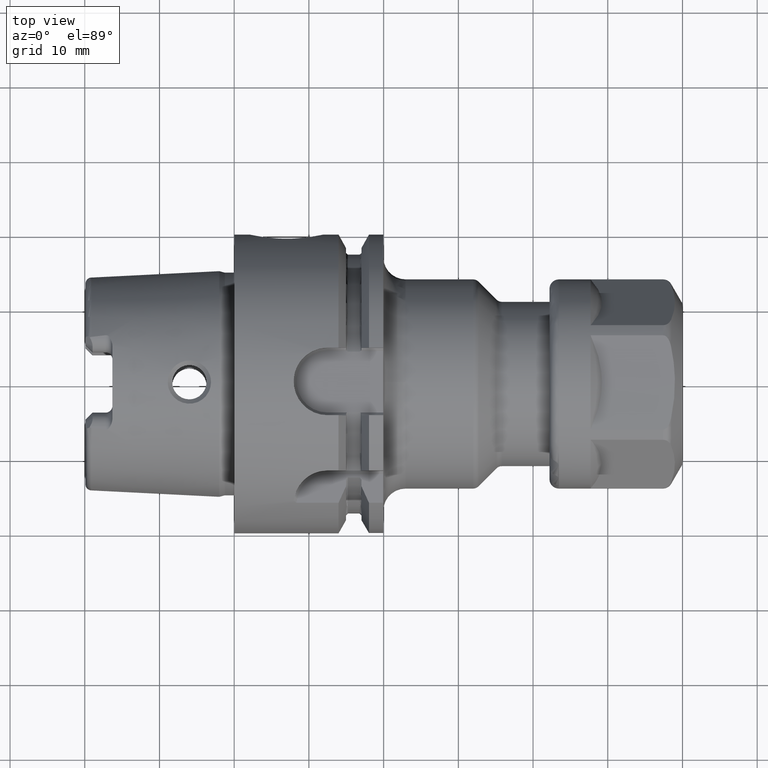
[diagram: clean part render]
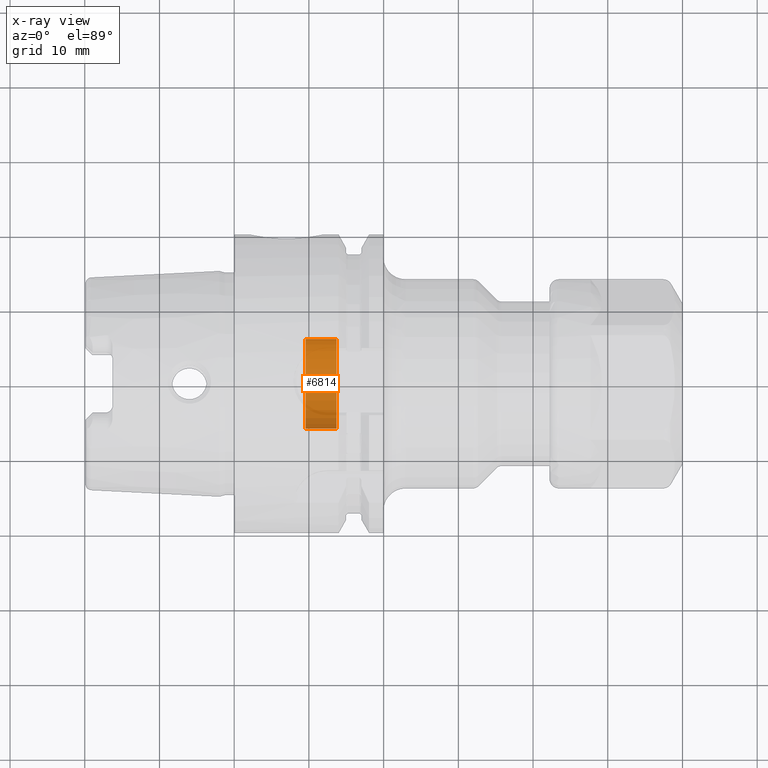
[diagram: x-ray — body ghosted, one internal face saturated and labeled with its STEP entity id]
A machine part, top view, then the same camera in x-ray: the body is ghosted and one INTERNAL B-rep face — a face not visible from any outside direction — is saturated and labeled: STEP entity #6814.
In plain terms, the highlighted cylindrical surface (partial cylindrical patch) has radius 6 mm, axis along (-1, 0, 0).
Its self-contained STEP definition (entity closure, byte-faithful):
#6763=CARTESIAN_POINT('',(1.37E1,0.E0,0.E0));
#6764=DIRECTION('',(-1.E0,0.E0,0.E0));
#6765=DIRECTION('',(0.E0,1.E0,0.E0));
#6766=AXIS2_PLACEMENT_3D('',#6763,#6764,#6765);
#6768=CARTESIAN_POINT('',(9.5625E0,0.E0,0.E0));
#6769=DIRECTION('',(1.E0,0.E0,0.E0));
#6770=DIRECTION('',(0.E0,-1.E0,0.E0));
#6771=AXIS2_PLACEMENT_3D('',#6768,#6769,#6770);
#6773=DIRECTION('',(1.E0,0.E0,0.E0));
#6774=VECTOR('',#6773,4.1375E0);
#6775=CARTESIAN_POINT('',(9.5625E0,6.E0,0.E0));
#6776=LINE('',#6775,#6774);
#6782=DIRECTION('',(1.E0,0.E0,0.E0));
#6783=VECTOR('',#6782,4.1375E0);
#6784=CARTESIAN_POINT('',(9.5625E0,-6.E0,0.E0));
#6785=LINE('',#6784,#6783);
#6791=CARTESIAN_POINT('',(9.5625E0,6.E0,0.E0));
#6792=CARTESIAN_POINT('',(1.37E1,6.E0,0.E0));
#6793=VERTEX_POINT('',#6791);
#6794=VERTEX_POINT('',#6792);
#6795=CARTESIAN_POINT('',(9.5625E0,-6.E0,0.E0));
#6796=CARTESIAN_POINT('',(1.37E1,-6.E0,0.E0));
#6797=VERTEX_POINT('',#6795);
#6798=VERTEX_POINT('',#6796);
#6799=CARTESIAN_POINT('',(1.851760861489E1,0.E0,0.E0));
#6800=DIRECTION('',(-1.E0,0.E0,0.E0));
#6801=DIRECTION('',(0.E0,1.E0,0.E0));
#6802=AXIS2_PLACEMENT_3D('',#6799,#6800,#6801);
#6803=CYLINDRICAL_SURFACE('',#6802,6.E0);
#6805=ORIENTED_EDGE('',*,*,#6804,.T.);
#6807=ORIENTED_EDGE('',*,*,#6806,.T.);
#6809=ORIENTED_EDGE('',*,*,#6808,.F.);
#6811=ORIENTED_EDGE('',*,*,#6810,.T.);
#6812=EDGE_LOOP('',(#6805,#6807,#6809,#6811));
#6813=FACE_OUTER_BOUND('',#6812,.F.);
#6814=ADVANCED_FACE('',(#6813),#6803,.F.);
#6767=CIRCLE('',#6766,6.E0);
#6772=CIRCLE('',#6771,6.E0);
#6804=EDGE_CURVE('',#6793,#6794,#6776,.T.);
#6806=EDGE_CURVE('',#6794,#6798,#6767,.T.);
#6808=EDGE_CURVE('',#6797,#6798,#6785,.T.);
#6810=EDGE_CURVE('',#6797,#6793,#6772,.T.);